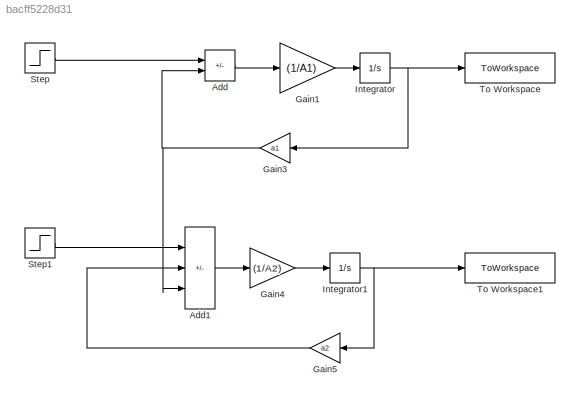
MODEL slx_bacff5228d31
KIND model
CONFIG AbsTol = auto
CONFIG EnableMultiTasking = off
CONFIG FixedStep = auto
CONFIG MaxStep = auto
CONFIG MinStep = auto
CONFIG RelTol = 1e-3
CONFIG SampleTimeConstraint = Unconstrained
CONFIG SolverName = VariableStepAuto
CONFIG StartTime = 0.0
CONFIG StopTime = 10.0
BLOCK [Sum] Add
  IconShape = rectangular
  Inputs = +-
BLOCK [Sum] Add1
  IconShape = rectangular
  Inputs = +-+
BLOCK [Gain] Gain1
  Gain = (1/A1)
BLOCK [Gain] Gain3
  Gain = a1
  NameLocation = top
BLOCK [Gain] Gain4
  Gain = (1/A2)
BLOCK [Gain] Gain5
  Gain = a2
  NameLocation = top
BLOCK [Integrator] Integrator
  InitialCondition = initial_height_1
BLOCK [Integrator] Integrator1
  InitialCondition = initial_height_2
BLOCK [Step] Step
  After = initial_flow_input_1 + flow_input_step_1
  Before = initial_flow_input_1
  SampleTime = 0
  Time = T0
BLOCK [Step] Step1
  After = initial_flow_input_2 + flow_input_step_2
  Before = initial_flow_input_2
  SampleTime = 0
  Time = T0
BLOCK [ToWorkspace] To Workspace
  FixptAsFi = on
  MaxDataPoints = inf
  SampleTime = -1
  VariableName = h1
BLOCK [ToWorkspace] To Workspace1
  FixptAsFi = on
  MaxDataPoints = inf
  SampleTime = -1
  VariableName = h2
LINE Add1:1 -> Gain4:1
LINE Add:1 -> Gain1:1
LINE Gain1:1 -> Integrator:1
NET Gain3:1 -> Add1:3, Add:2
LINE Gain4:1 -> Integrator1:1
LINE Gain5:1 -> Add1:2
NET Integrator1:1 -> Gain5:1, To Workspace1:1
NET Integrator:1 -> Gain3:1, To Workspace:1
LINE Step1:1 -> Add1:1
LINE Step:1 -> Add:1
note: NET lines group one-source signal fan-out (src -> all destinations, sorted); 1:1 wires keep LINE
